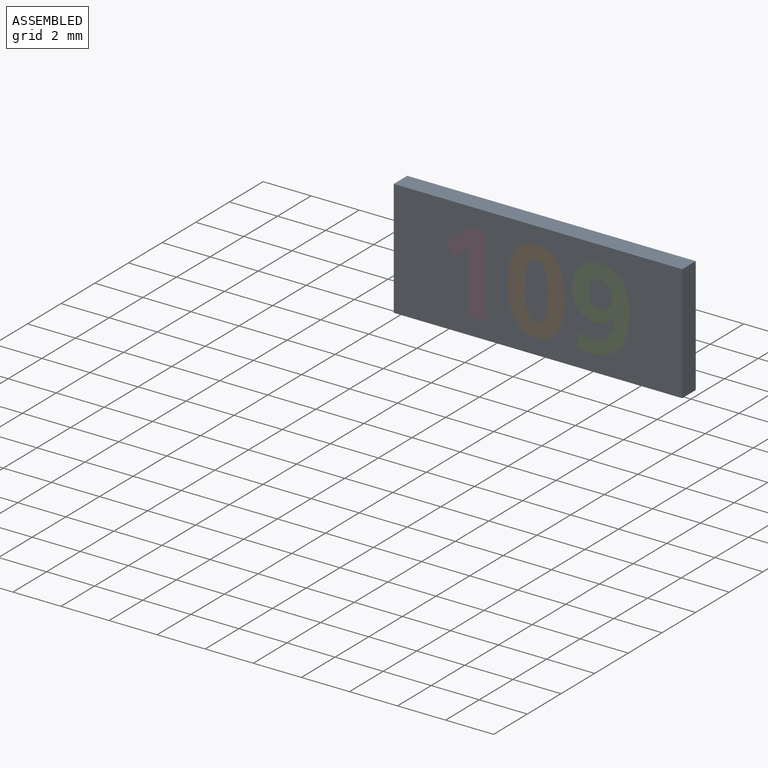
[diagram: assembled view]
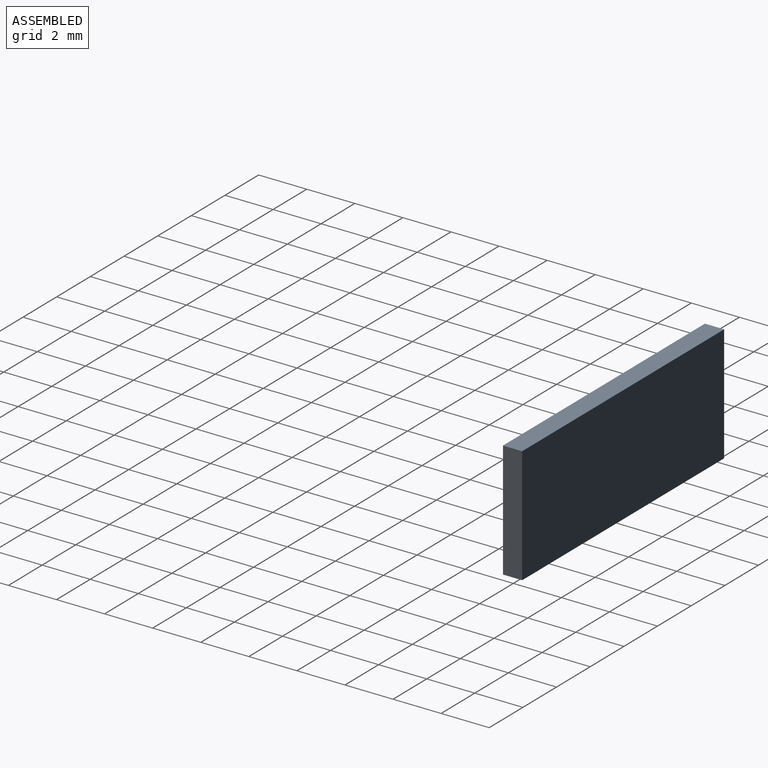
[diagram: assembled view, second angle]
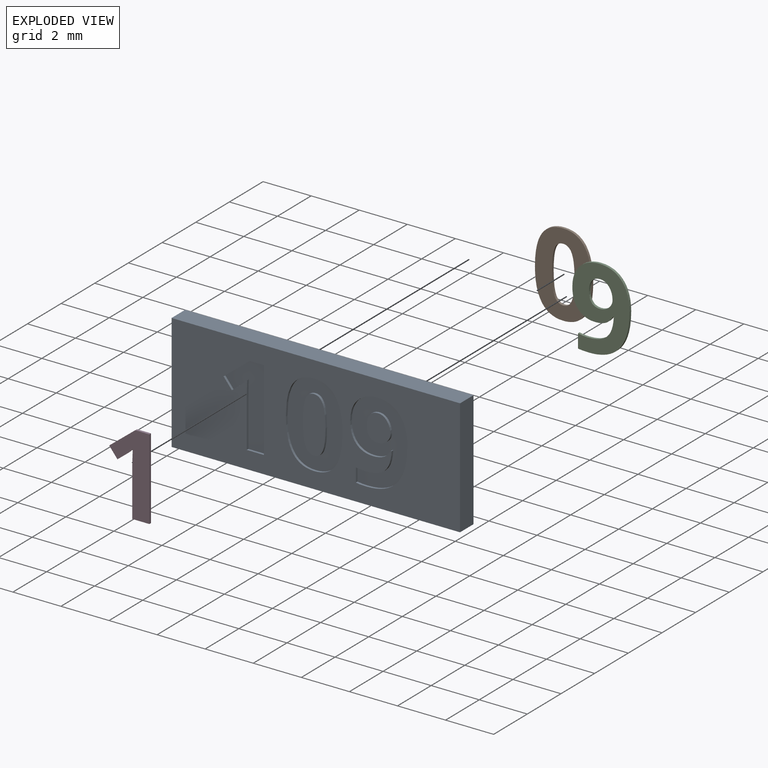
[diagram: exploded view]
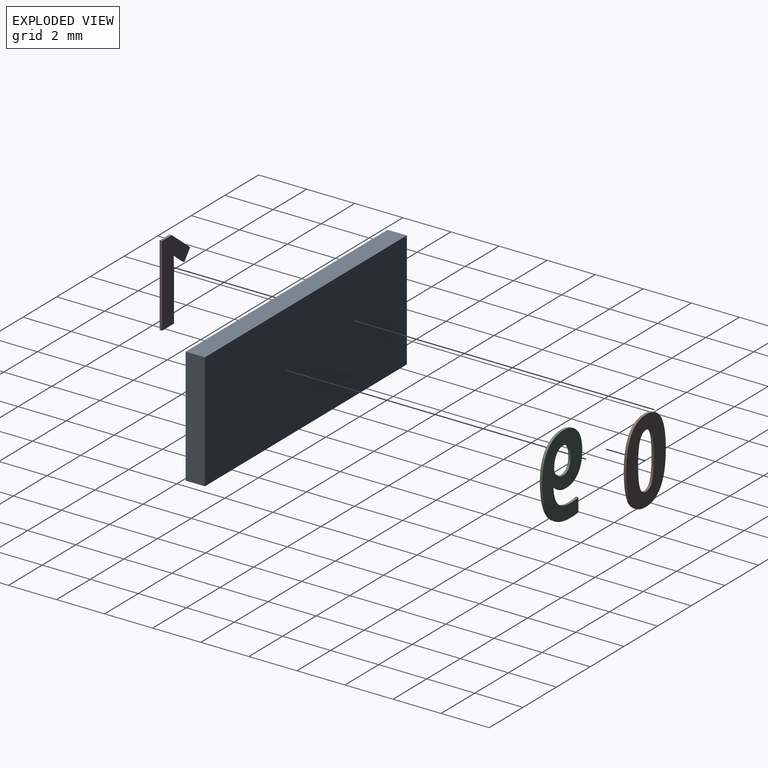
[diagram: exploded view, second angle]
ASSEMBLY  parts=4 mates=3
PART A: 63 faces, bbox 12x0.8x4.9 mm
  f0: plane 12x4.85mm, normal (0,-1,0), area 42.7mm2, adj f1,f2,f3,f4,f6,f7,f8,f9
  f1: plane 12x0.8mm, normal (0,0,-1), area 9.6mm2, adj f0,f2,f4,f5
  f2: plane 4.85x0.8mm, normal (1,0,0), area 3.9mm2, adj f0,f1,f3,f5
  f3: plane 12x0.8mm, normal (0,0,1), area 9.6mm2, adj f0,f2,f4,f5
  f4: plane 4.85x0.8mm, normal (-1,0,0), area 3.9mm2, adj f0,f1,f3,f5
  f5: plane 12x4.85mm, normal (0,1,0), area 58.2mm2, adj f1,f2,f3,f4
  f6: extruded ~0.79x0.15mm, area 0.1mm2, adj f0,f7,f31,f32
  f7: extruded ~0.51x0.43mm, area 0.1mm2, adj f0,f6,f8,f32
  f8: extruded ~0.65x0.18mm, area 0.1mm2, adj f0,f7,f9,f32
  f9: extruded ~0.84x0.31mm, area 0.1mm2, adj f0,f8,f10,f32
  f10: extruded ~0.86x0.31mm, area 0.1mm2, adj f0,f9,f11,f32
  f11: extruded ~0.78x0.25mm, area 0.1mm2, adj f0,f10,f12,f32
  f12: extruded ~0.69x0.28mm, area 0.1mm2, adj f0,f11,f13,f32
  f13: extruded ~0.44x0.1mm, area 0mm2, adj f0,f12,f14,f32
  f14: extruded ~0.31x0.3mm, area 0mm2, adj f0,f13,f15,f32
  f15: plane 0.1x0.03mm, normal (0,0,1), area 0mm2, adj f0,f14,f16,f32
  f16: extruded ~0.62x0.14mm, area 0.1mm2, adj f0,f15,f17,f32
  f17: extruded ~0.35x0.33mm, area 0mm2, adj f0,f16,f18,f32
  f18: extruded ~0.59x0.1mm, area 0.1mm2, adj f0,f17,f19,f32
  f19: extruded ~0.41x0.1mm, area 0mm2, adj f0,f18,f20,f32
  f20: plane 0.57x0.1mm, normal (1,0,0), area 0.1mm2, adj f0,f19,f21,f32
  f21: extruded ~0.45x0.1mm, area 0mm2, adj f0,f20,f22,f32
  f22: extruded ~1.27x0.49mm, area 0.1mm2, adj f0,f21,f31,f32
  f23: extruded ~0.37x0.19mm, area 0mm2, adj f24,f30,f32,f33
  f24: extruded ~0.46x0.14mm, area 0mm2, adj f23,f25,f32,f33
  f25: extruded ~0.33x0.15mm, area 0mm2, adj f24,f26,f32,f33
  f26: extruded ~0.37x0.14mm, area 0mm2, adj f25,f27,f32,f33
  f27: extruded ~0.34x0.14mm, area 0mm2, adj f26,f28,f32,f33
  f28: extruded ~0.39x0.11mm, area 0mm2, adj f27,f29,f32,f33
  f29: extruded ~0.44x0.12mm, area 0mm2, adj f28,f30,f32,f33
  f30: extruded ~0.35x0.15mm, area 0mm2, adj f23,f29,f32,f33
  f31: extruded ~1.49x0.42mm, area 0.2mm2, adj f0,f6,f22,f32
  f32: plane 3.46x2.38mm, normal (0,-1,0), area 4.8mm2, adj f6,f7,f8,f9,f10,f11,f12,f13
  f33: plane 1.12x0.98mm, normal (0,-1,0), area 0.9mm2, adj f23,f24,f25,f26,f27,f28,f29,f30
  f34: extruded ~1.3x0.3mm, area 0.1mm2, adj f0,f35,f49,f50
  f35: extruded ~0.88x0.44mm, area 0.1mm2, adj f0,f34,f36,f50
  f36: extruded ~0.89x0.42mm, area 0.1mm2, adj f0,f35,f37,f50
  f37: extruded ~1.32x0.29mm, area 0.1mm2, adj f0,f36,f38,f50
  f38: extruded ~1.29x0.3mm, area 0.1mm2, adj f0,f37,f39,f50
  f39: extruded ~0.88x0.44mm, area 0.1mm2, adj f0,f38,f40,f50
  f40: extruded ~0.89x0.42mm, area 0.1mm2, adj f0,f39,f49,f50
  f41: extruded ~0.89x0.11mm, area 0.1mm2, adj f42,f48,f50,f51
  f42: extruded ~0.36x0.27mm, area 0mm2, adj f41,f43,f50,f51
  f43: extruded ~0.36x0.27mm, area 0mm2, adj f42,f44,f50,f51
  f44: extruded ~0.89x0.11mm, area 0.1mm2, adj f43,f45,f50,f51
  f45: extruded ~0.89x0.11mm, area 0.1mm2, adj f44,f46,f50,f51
  f46: extruded ~0.36x0.27mm, area 0mm2, adj f45,f47,f50,f51
  f47: extruded ~0.36x0.27mm, area 0mm2, adj f46,f48,f50,f51
  f48: extruded ~0.89x0.11mm, area 0.1mm2, adj f41,f47,f50,f51
  f49: extruded ~1.31x0.29mm, area 0.1mm2, adj f0,f34,f40,f50
  f50: plane 3.47x2.36mm, normal (0,-1,0), area 5mm2, adj f34,f35,f36,f37,f38,f39,f40,f41
  f51: plane 2.32x0.94mm, normal (0,-1,0), area 1.8mm2, adj f41,f42,f43,f44,f45,f46,f47,f48
  f52: plane 3.37x0.1mm, normal (-1,0,0), area 0.3mm2, adj f0,f53,f61,f62
  f53: plane 0.59x0.1mm, normal (0,0,-1), area 0.1mm2, adj f0,f52,f54,f62
  f54: plane 1.09x0.86mm, normal (0.62,0,-0.78), area 0.1mm2, adj f0,f53,f55,f62
  f55: plane 0.43x0.34mm, normal (0.78,0,0.63), area 0.1mm2, adj f0,f54,f56,f62
  f56: plane 0.39x0.31mm, normal (-0.63,0,0.78), area 0mm2, adj f0,f55,f57,f62
  f57: extruded ~0.25x0.23mm, area 0mm2, adj f0,f56,f58,f62
  f58: plane 0.35x0.1mm, normal (1,0,-0.03), area 0mm2, adj f0,f57,f59,f62
  f59: plane 0.32x0.1mm, normal (1,0,-0.02), area 0mm2, adj f0,f58,f60,f62
  f60: plane 1.95x0.1mm, normal (1,0,0), area 0.2mm2, adj f0,f59,f61,f62
  f61: plane 0.71x0.1mm, normal (0,0,1), area 0.1mm2, adj f0,f52,f60,f62
  f62: plane 3.37x1.67mm, normal (0,-1,0), area 2.9mm2, adj f52,f53,f54,f55,f56,f57,f58,f59
PART B: 18 faces, bbox 2.4x0.1x3.5 mm
  f0: plane 3.47x2.36mm, normal (0,-1,0), area 5mm2, adj f1,f2,f3,f4,f5,f6,f7,f8
  f1: extruded ~0.88x0.44mm, area 0.1mm2, adj f0,f2,f11,f13
  f2: extruded ~0.89x0.42mm, area 0.1mm2, adj f0,f1,f3,f11
  f3: extruded ~1.32x0.29mm, area 0.1mm2, adj f0,f2,f4,f11
  f4: extruded ~1.29x0.3mm, area 0.1mm2, adj f0,f3,f5,f11
  f5: extruded ~0.88x0.44mm, area 0.1mm2, adj f0,f4,f11,f12
  f6: extruded ~0.36x0.27mm, area 0mm2, adj f0,f7,f11,f16
  f7: extruded ~0.36x0.27mm, area 0mm2, adj f0,f6,f8,f11
  f8: extruded ~0.89x0.11mm, area 0.1mm2, adj f0,f7,f9,f11
  f9: extruded ~0.89x0.11mm, area 0.1mm2, adj f0,f8,f10,f11
  f10: extruded ~0.36x0.27mm, area 0mm2, adj f0,f9,f11,f15
  f11: plane 3.47x2.36mm, normal (0,1,0), area 5mm2, adj f1,f2,f3,f4,f5,f6,f7,f8
  f12: extruded ~0.89x0.42mm, area 0.1mm2, adj f0,f5,f11,f14
  f13: extruded ~1.3x0.3mm, area 0.1mm2, adj f0,f1,f11,f14
  f14: extruded ~1.31x0.29mm, area 0.1mm2, adj f0,f11,f12,f13
  f15: extruded ~0.36x0.27mm, area 0mm2, adj f0,f10,f11,f17
  f16: extruded ~0.89x0.11mm, area 0.1mm2, adj f0,f6,f11,f17
  f17: extruded ~0.89x0.11mm, area 0.1mm2, adj f0,f11,f15,f16
PART C: 28 faces, bbox 2.4x0.1x3.5 mm
  f0: plane 3.46x2.38mm, normal (0,-1,0), area 4.8mm2, adj f1,f2,f3,f4,f5,f6,f7,f8
  f1: extruded ~0.51x0.43mm, area 0.1mm2, adj f0,f2,f21,f23
  f2: extruded ~0.65x0.18mm, area 0.1mm2, adj f0,f1,f3,f21
  f3: extruded ~0.84x0.31mm, area 0.1mm2, adj f0,f2,f4,f21
  f4: extruded ~0.86x0.31mm, area 0.1mm2, adj f0,f3,f5,f21
  f5: extruded ~0.78x0.25mm, area 0.1mm2, adj f0,f4,f6,f21
  f6: extruded ~0.69x0.28mm, area 0.1mm2, adj f0,f5,f7,f21
  f7: extruded ~0.44x0.1mm, area 0mm2, adj f0,f6,f8,f21
  f8: extruded ~0.31x0.3mm, area 0mm2, adj f0,f7,f9,f21
  f9: plane 0.1x0.03mm, normal (0,0,-1), area 0mm2, adj f0,f8,f10,f21
  f10: extruded ~0.62x0.14mm, area 0.1mm2, adj f0,f9,f11,f21
  f11: extruded ~0.35x0.33mm, area 0mm2, adj f0,f10,f12,f21
  f12: extruded ~0.59x0.1mm, area 0.1mm2, adj f0,f11,f13,f21
  f13: extruded ~0.41x0.1mm, area 0mm2, adj f0,f12,f14,f21
  f14: plane 0.57x0.1mm, normal (-1,0,0), area 0.1mm2, adj f0,f13,f15,f21
  f15: extruded ~0.45x0.1mm, area 0mm2, adj f0,f14,f21,f22
  f16: extruded ~0.46x0.14mm, area 0mm2, adj f0,f17,f21,f26
  f17: extruded ~0.33x0.15mm, area 0mm2, adj f0,f16,f18,f21
  f18: extruded ~0.37x0.14mm, area 0mm2, adj f0,f17,f19,f21
  f19: extruded ~0.34x0.14mm, area 0mm2, adj f0,f18,f20,f21
  f20: extruded ~0.39x0.11mm, area 0mm2, adj f0,f19,f21,f25
  f21: plane 3.46x2.38mm, normal (0,1,0), area 4.8mm2, adj f1,f2,f3,f4,f5,f6,f7,f8
  f22: extruded ~1.27x0.49mm, area 0.1mm2, adj f0,f15,f21,f24
  f23: extruded ~0.79x0.15mm, area 0.1mm2, adj f0,f1,f21,f24
  f24: extruded ~1.49x0.42mm, area 0.2mm2, adj f0,f21,f22,f23
  f25: extruded ~0.44x0.12mm, area 0mm2, adj f0,f20,f21,f27
  f26: extruded ~0.37x0.19mm, area 0mm2, adj f0,f16,f21,f27
  f27: extruded ~0.35x0.15mm, area 0mm2, adj f0,f21,f25,f26
PART D: 12 faces, bbox 1.7x0.1x3.4 mm
  f0: plane 3.37x1.67mm, normal (0,-1,0), area 2.9mm2, adj f1,f2,f3,f4,f5,f6,f7,f9
  f1: plane 0.59x0.1mm, normal (0,0,1), area 0.1mm2, adj f0,f2,f8,f10
  f2: plane 1.09x0.86mm, normal (-0.62,0,0.78), area 0.1mm2, adj f0,f1,f3,f8
  f3: plane 0.43x0.34mm, normal (-0.78,0,-0.63), area 0.1mm2, adj f0,f2,f4,f8
  f4: plane 0.39x0.31mm, normal (0.63,0,-0.78), area 0mm2, adj f0,f3,f5,f8
  f5: extruded ~0.25x0.23mm, area 0mm2, adj f0,f4,f6,f8
  f6: plane 0.35x0.1mm, normal (-1,0,0.03), area 0mm2, adj f0,f5,f7,f8
  f7: plane 0.32x0.1mm, normal (-1,0,0.02), area 0mm2, adj f0,f6,f8,f9
  f8: plane 3.37x1.67mm, normal (0,1,0), area 2.9mm2, adj f1,f2,f3,f4,f5,f6,f7,f9
  f9: plane 1.95x0.1mm, normal (-1,0,0), area 0.2mm2, adj f0,f7,f8,f11
  f10: plane 3.37x0.1mm, normal (1,0,0), area 0.3mm2, adj f0,f1,f8,f11
  f11: plane 0.71x0.1mm, normal (0,0,-1), area 0.1mm2, adj f0,f8,f9,f10
PLACE A t=(-0.04,0.34,-0.05)mm
PLACE B t=(-2.96,0.34,-0.05)mm
PLACE C t=(1.09,0.34,-0.05)mm
PLACE D t=(-4.59,0.34,-0.05)mm
MATE fastened D.f0 <-> A.f0  axis (0,-1,0) through (-2.92,-0.46,-1.75)mm
MATE fastened C.f0 <-> A.f0  axis (0,-1,0) through (1.62,-0.46,-1.76)mm
MATE fastened B.f0 <-> A.f51  axis (0,-1,0) through (-0.11,-0.46,-1.22)mm
